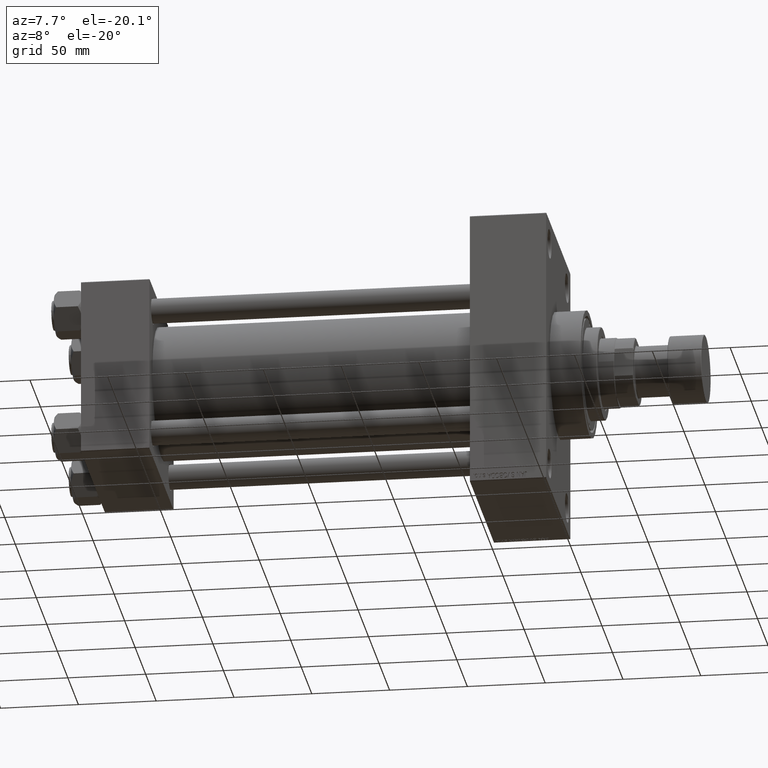
[diagram: clean part render]
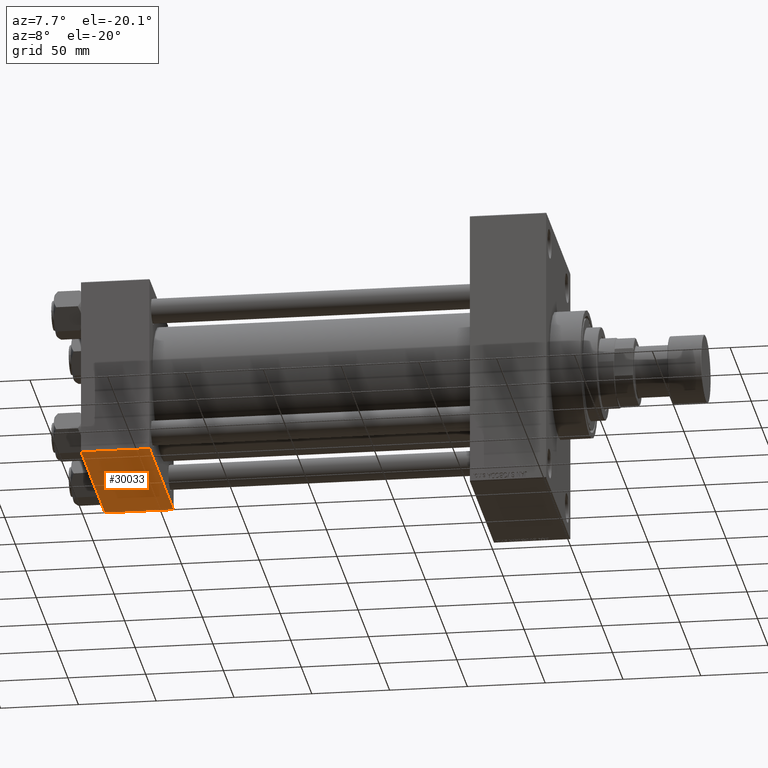
[diagram: same view with one face highlighted and labeled with its STEP entity id]
A machine part, auxiliary view. The second image highlights one B-rep face of the part: STEP entity #30033.
In plain terms, the highlighted planar face has unit normal (0, 0, -1).
Its self-contained STEP definition (entity closure, byte-faithful):
#1062 = DIRECTION ( 'NONE',  ( 0.000000000000000000, -1.000000000000000000, -1.206764157201257045E-16 ) ) ;
#2108 = DIRECTION ( 'NONE',  ( 0.000000000000000000, 1.000000000000000000, 1.206764157201257045E-16 ) ) ;
#2448 = CARTESIAN_POINT ( 'NONE',  ( 0.000000000000000000, 57.00000000000002132, -57.49999999999999289 ) ) ;
#2582 = FACE_OUTER_BOUND ( 'NONE', #39603, .T. ) ;
#3573 = VERTEX_POINT ( 'NONE', #2448 ) ;
#4378 = ORIENTED_EDGE ( 'NONE', *, *, #21511, .F. ) ;
#4593 = ORIENTED_EDGE ( 'NONE', *, *, #31925, .T. ) ;
#6910 = LINE ( 'NONE', #39628, #17508 ) ;
#8583 = AXIS2_PLACEMENT_3D ( 'NONE', #28513, #46334, #2108 ) ;
#8587 = VERTEX_POINT ( 'NONE', #36943 ) ;
#10602 = CARTESIAN_POINT ( 'NONE',  ( 0.000000000000000000, -57.00000000000000711, -57.50000000000000711 ) ) ;
#12716 = DIRECTION ( 'NONE',  ( 1.000000000000000000, 0.000000000000000000, 0.000000000000000000 ) ) ;
#16925 = VECTOR ( 'NONE', #26495, 1000.000000000000000 ) ;
#17508 = VECTOR ( 'NONE', #28915, 1000.000000000000000 ) ;
#19679 = VECTOR ( 'NONE', #12716, 1000.000000000000000 ) ;
#21251 = CARTESIAN_POINT ( 'NONE',  ( 44.00000000000000000, 57.00000000000002132, -57.49999999999999289 ) ) ;
#21511 = EDGE_CURVE ( 'NONE', #3573, #38511, #26507, .T. ) ;
#26495 = DIRECTION ( 'NONE',  ( 0.000000000000000000, -1.000000000000000000, -1.206764157201257045E-16 ) ) ;
#26507 = LINE ( 'NONE', #34317, #30290 ) ;
#28513 = CARTESIAN_POINT ( 'NONE',  ( 44.00000000000000000, 57.49999999999999289, -57.49999999999999289 ) ) ;
#28915 = DIRECTION ( 'NONE',  ( -1.000000000000000000, 0.000000000000000000, 0.000000000000000000 ) ) ;
#30033 = ADVANCED_FACE ( 'NONE', ( #2582 ), #32177, .T. ) ;
#30290 = VECTOR ( 'NONE', #1062, 1000.000000000000000 ) ;
#31900 = ORIENTED_EDGE ( 'NONE', *, *, #34750, .T. ) ;
#31925 = EDGE_CURVE ( 'NONE', #3573, #8587, #35433, .T. ) ;
#32177 = PLANE ( 'NONE',  #8583 ) ;
#34317 = CARTESIAN_POINT ( 'NONE',  ( 0.000000000000000000, 57.49999999999999289, -57.49999999999999289 ) ) ;
#34750 = EDGE_CURVE ( 'NONE', #41020, #38511, #6910, .T. ) ;
#35433 = LINE ( 'NONE', #21251, #19679 ) ;
#36943 = CARTESIAN_POINT ( 'NONE',  ( 44.00000000000000000, 57.00000000000002132, -57.49999999999999289 ) ) ;
#38511 = VERTEX_POINT ( 'NONE', #10602 ) ;
#39603 = EDGE_LOOP ( 'NONE', ( #4378, #4593, #40310, #31900 ) ) ;
#39628 = CARTESIAN_POINT ( 'NONE',  ( 0.000000000000000000, -57.00000000000000711, -57.50000000000000711 ) ) ;
#40310 = ORIENTED_EDGE ( 'NONE', *, *, #41370, .T. ) ;
#41020 = VERTEX_POINT ( 'NONE', #47479 ) ;
#41370 = EDGE_CURVE ( 'NONE', #8587, #41020, #41838, .T. ) ;
#41838 = LINE ( 'NONE', #42083, #16925 ) ;
#42083 = CARTESIAN_POINT ( 'NONE',  ( 44.00000000000000000, 57.49999999999999289, -57.49999999999999289 ) ) ;
#46334 = DIRECTION ( 'NONE',  ( 0.000000000000000000, 1.206764157201257045E-16, -1.000000000000000000 ) ) ;
#47479 = CARTESIAN_POINT ( 'NONE',  ( 44.00000000000000000, -57.00000000000000711, -57.50000000000000711 ) ) ;